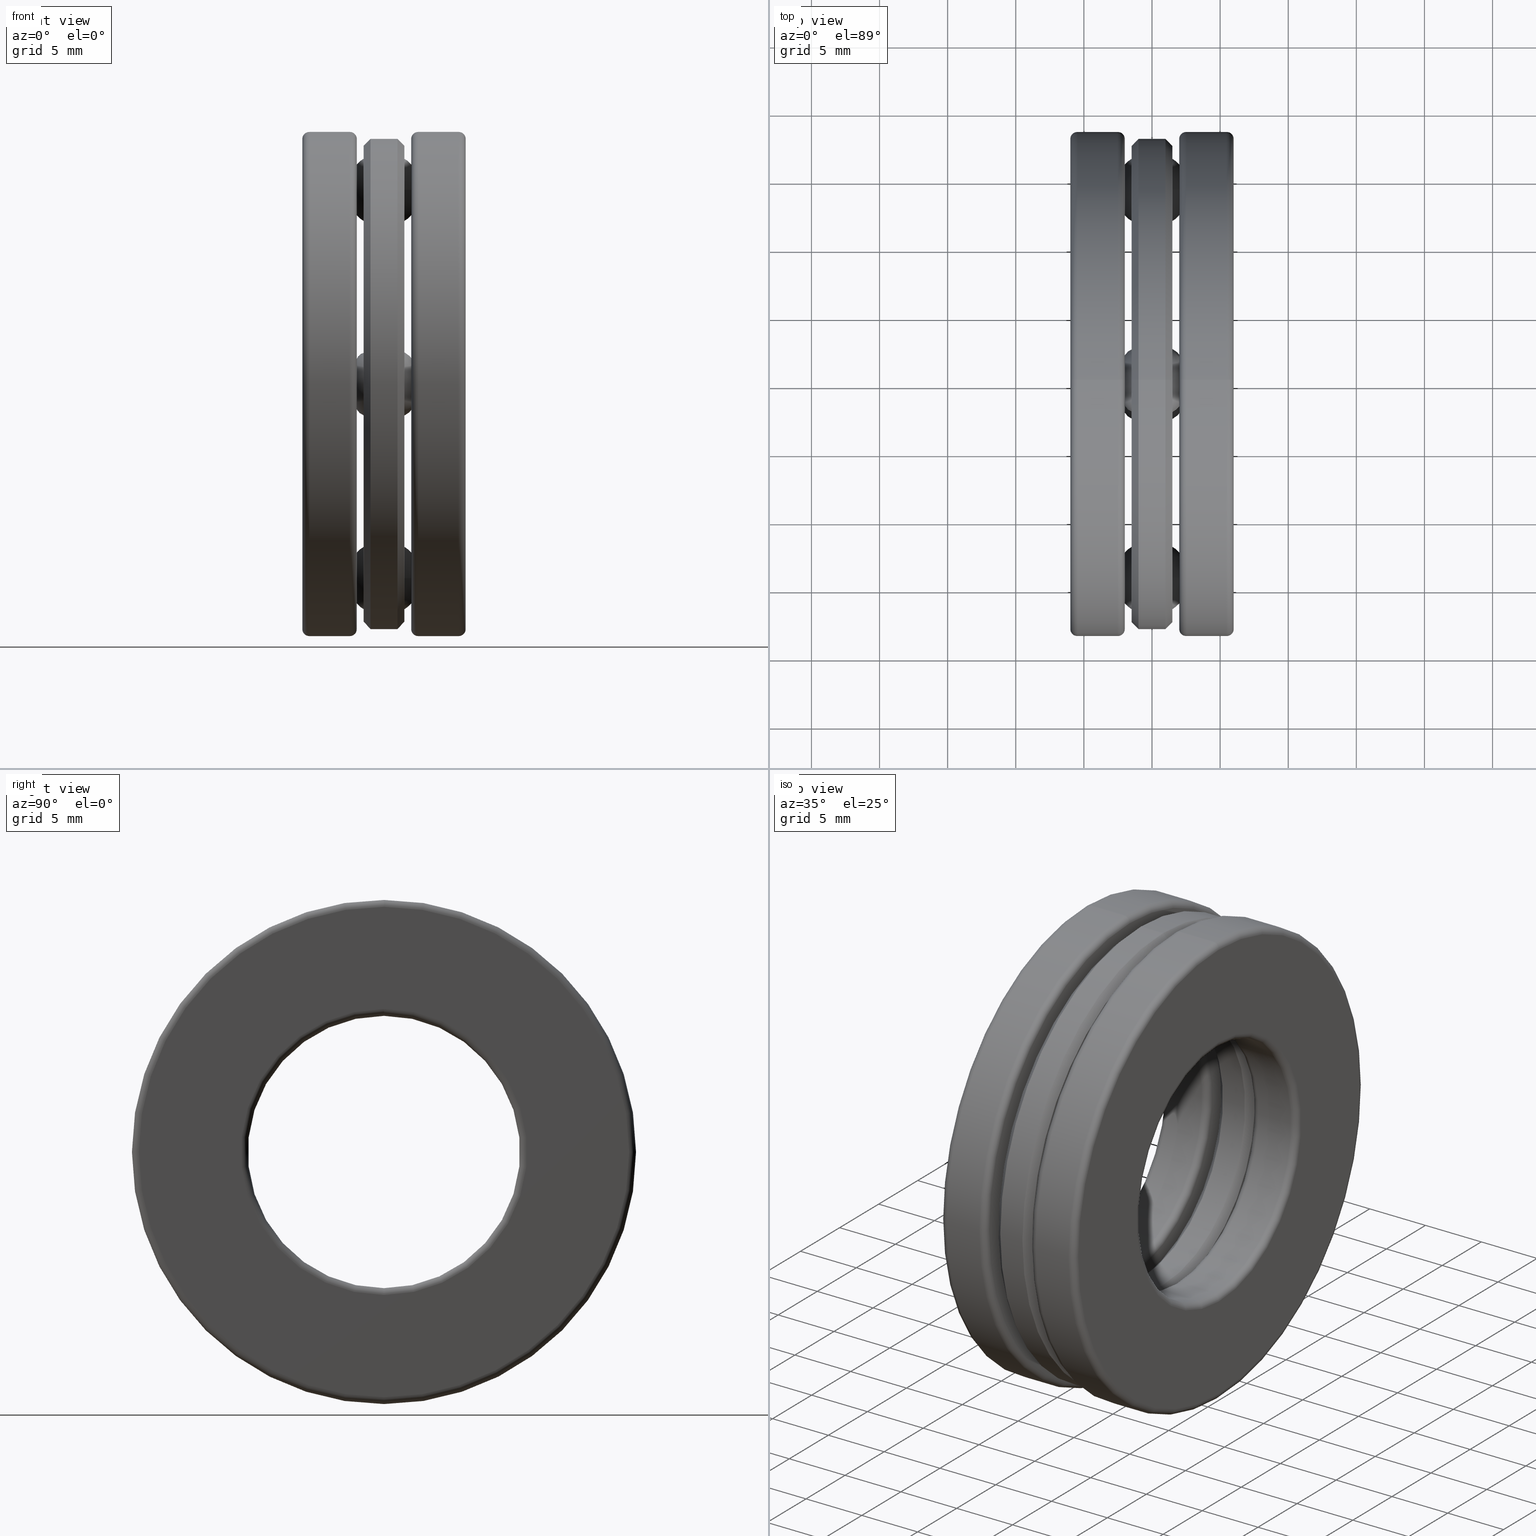
[diagram: canonical four-view strip — front | top / right | iso, engineering-drawing reading convention]
A machine part, canonical four-view strip (front | top / right | iso — engineering-drawing reading convention). The complete STEP part file that produces these views, byte-faithful:
ISO-10303-21;
HEADER;
FILE_DESCRIPTION (( 'STEP AP203' ),
    '1' );
FILE_NAME ('2904-ABB.step',
    '2017-03-07T16:42:54',
    ( '' ),
    ( '' ),
    'SwSTEP 2.0',
    'SolidWorks 2017',
    '' );
FILE_SCHEMA (( 'CONFIG_CONTROL_DESIGN' ));
ENDSEC;

DATA;
#1 = DIRECTION ( 'NONE',  ( -1.000000000000000000, -0.0000000000000000000, -0.0000000000000000000 ) ) ;
#2 = DIRECTION ( 'NONE',  ( 0.0000000000000000000, 0.0000000000000000000, 1.000000000000000000 ) ) ;
#3 = VERTEX_POINT ( 'NONE', #647 ) ;
#4 = FACE_OUTER_BOUND ( 'NONE', #116, .T. ) ;
#5 = CARTESIAN_POINT ( 'NONE',  ( -0.05900000000000000400, 0.5610000000000000500, 0.0000000000000000000 ) ) ;
#6 = FACE_OUTER_BOUND ( 'NONE', #537, .T. ) ;
#7 = APPROVAL_ROLE ( '' ) ;
#8 = ORIENTED_EDGE ( 'NONE', *, *, #449, .T. ) ;
#9 = DIRECTION ( 'NONE',  ( -1.000000000000000000, -0.0000000000000000000, -0.0000000000000000000 ) ) ;
#10 = EDGE_LOOP ( 'NONE', ( #759 ) ) ;
#11 = AXIS2_PLACEMENT_3D ( 'NONE', #288, #742, #348 ) ;
#12 = CARTESIAN_POINT ( 'NONE',  ( -0.05900000000000000400, 0.5610000000000000500, -0.1145000000000000000 ) ) ;
#13 = CARTESIAN_POINT ( 'NONE',  ( -0.05900000000000000400, 0.1145000000000058700, 0.5609999999999988300 ) ) ;
#14 = EDGE_CURVE ( 'NONE', #212, #212, #87, .T. ) ;
#15 = VERTEX_POINT ( 'NONE', #515 ) ;
#16 = PERSON_AND_ORGANIZATION ( #44, #329 ) ;
#17 = CONICAL_SURFACE ( 'NONE', #614, 0.4334999999999998900, 0.7853981633974468400 ) ;
#18 = CARTESIAN_POINT ( 'NONE',  ( 0.05899999999999999000, 0.0000000000000000000, 0.6884999999999998900 ) ) ;
#19 = ADVANCED_FACE ( 'NONE', ( ), #389, .T. ) ;
#20 = DIRECTION ( 'NONE',  ( 0.0000000000000000000, 0.0000000000000000000, 1.000000000000000000 ) ) ;
#21 = ORIENTED_EDGE ( 'NONE', *, *, #246, .T. ) ;
#22 = CARTESIAN_POINT ( 'NONE',  ( 0.09866824000000028200, 0.0000000000000000000, 0.7285000000000001500 ) ) ;
#23 = AXIS2_PLACEMENT_3D ( 'NONE', #427, #562, #761 ) ;
#24 = ADVANCED_FACE ( 'NONE', ( #693, #796 ), #94, .T. ) ;
#25 = DIRECTION ( 'NONE',  ( 1.000000000000000000, 0.0000000000000000000, 0.0000000000000000000 ) ) ;
#26 = FACE_BOUND ( 'NONE', #426, .T. ) ;
#27 = DIRECTION ( 'NONE',  ( -1.000000000000000000, -0.0000000000000000000, -0.0000000000000000000 ) ) ;
#28 = CIRCLE ( 'NONE', #622, 0.7285000000000000400 ) ;
#29 = AXIS2_PLACEMENT_3D ( 'NONE', #339, #83, #80 ) ;
#30 = EDGE_LOOP ( 'NONE', ( #536 ) ) ;
#31 = DIRECTION ( 'NONE',  ( 0.0000000000000000000, 0.0000000000000000000, 1.000000000000000000 ) ) ;
#32 = ORIENTED_EDGE ( 'NONE', *, *, #822, .F. ) ;
#33 = CARTESIAN_POINT ( 'NONE',  ( -0.2160000000000000000, 0.0000000000000000000, 0.0000000000000000000 ) ) ;
#34 = DIRECTION ( 'NONE',  ( 0.0000000000000000000, 0.0000000000000000000, 1.000000000000000000 ) ) ;
#35 = VERTEX_POINT ( 'NONE', #453 ) ;
#36 = COORDINATED_UNIVERSAL_TIME_OFFSET ( 5, 0, .BEHIND. ) ;
#37 = FACE_OUTER_BOUND ( 'NONE', #750, .T. ) ;
#38 = CARTESIAN_POINT ( 'NONE',  ( -0.03899999999999998600, 0.0000000000000000000, 0.0000000000000000000 ) ) ;
#39 = ORIENTED_EDGE ( 'NONE', *, *, #196, .F. ) ;
#40 = DIRECTION ( 'NONE',  ( -1.000000000000000000, -0.0000000000000000000, -0.0000000000000000000 ) ) ;
#41 = AXIS2_PLACEMENT_3D ( 'NONE', #409, #672, #794 ) ;
#42 = DIRECTION ( 'NONE',  ( 0.0000000000000000000, 0.0000000000000000000, 1.000000000000000000 ) ) ;
#43 = FACE_OUTER_BOUND ( 'NONE', #526, .T. ) ;
#44 = PERSON ( 'UNSPECIFIED', 'UNSPECIFIED', 'UNSPECIFIED', ('UNSPECIFIED'), ('UNSPECIFIED'), ('UNSPECIFIED') ) ;
#45 = CARTESIAN_POINT ( 'NONE',  ( -0.07866824000000002800, 0.0000000000000000000, 0.0000000000000000000 ) ) ;
#46 = CYLINDRICAL_SURFACE ( 'NONE', #698, 0.3934999999999999100 ) ;
#47 = CC_DESIGN_PERSON_AND_ORGANIZATION_ASSIGNMENT ( #700, #597, ( #749 ) ) ;
#48 = ORIENTED_EDGE ( 'NONE', *, *, #149, .F. ) ;
#49 = EDGE_LOOP ( 'NONE', ( #105 ) ) ;
#50 = DIRECTION ( 'NONE',  ( -1.000000000000000000, -0.0000000000000000000, -0.0000000000000000000 ) ) ;
#51 = CIRCLE ( 'NONE', #219, 0.7285000000000001500 ) ;
#52 = DATE_AND_TIME ( #592, #804 ) ;
#53 = CIRCLE ( 'NONE', #259, 0.6884999999999998900 ) ;
#54 =( LENGTH_UNIT ( ) NAMED_UNIT ( * ) SI_UNIT ( $, .METRE. ) );
#55 = EDGE_LOOP ( 'NONE', ( #571 ) ) ;
#56 = DIRECTION ( 'NONE',  ( 0.0000000000000000000, 0.0000000000000000000, 1.000000000000000000 ) ) ;
#57 = VERTEX_POINT ( 'NONE', #392 ) ;
#58 = CARTESIAN_POINT ( 'NONE',  ( 0.2360000000000001000, 0.0000000000000000000, 0.0000000000000000000 ) ) ;
#59 = FACE_BOUND ( 'NONE', #402, .T. ) ;
#60 = CIRCLE ( 'NONE', #416, 0.1145000000000000000 ) ;
#61 = CARTESIAN_POINT ( 'NONE',  ( 0.03900000000000000000, 0.0000000000000000000, 0.0000000000000000000 ) ) ;
#62 = DIRECTION ( 'NONE',  ( 0.0000000000000000000, 1.000000000000000000, -1.073652049911719200E-014 ) ) ;
#63 = EDGE_LOOP ( 'NONE', ( #335 ) ) ;
#64 = AXIS2_PLACEMENT_3D ( 'NONE', #791, #782, #274 ) ;
#65 = DIRECTION ( 'NONE',  ( 0.0000000000000000000, 0.0000000000000000000, 1.000000000000000000 ) ) ;
#66 = CARTESIAN_POINT ( 'NONE',  ( 0.05899999999999999700, 5.876163093272994000E-015, 0.5610000000000000500 ) ) ;
#67 = DESIGN_CONTEXT ( 'detailed design', #776, 'design' ) ;
#68 = ADVANCED_FACE ( 'NONE', ( #624, #740 ), #815, .T. ) ;
#69 = CARTESIAN_POINT ( 'NONE',  ( 0.05899999999999999700, 0.1145000000000058700, 0.5609999999999988300 ) ) ;
#70 = DIRECTION ( 'NONE',  ( 1.000000000000000000, 0.0000000000000000000, 0.0000000000000000000 ) ) ;
#71 = AXIS2_PLACEMENT_3D ( 'NONE', #139, #589, #586 ) ;
#72 = FACE_OUTER_BOUND ( 'NONE', #158, .T. ) ;
#73 = PERSON_AND_ORGANIZATION ( #44, #329 ) ;
#74 = MECHANICAL_CONTEXT ( 'NONE', #324, 'mechanical' ) ;
#75 = DIRECTION ( 'NONE',  ( -1.000000000000000000, -0.0000000000000000000, -0.0000000000000000000 ) ) ;
#76 = DIRECTION ( 'NONE',  ( -1.000000000000000000, -0.0000000000000000000, -0.0000000000000000000 ) ) ;
#77 = PLANE ( 'NONE',  #548 ) ;
#78 = CLOSED_SHELL ( 'NONE', ( #516, #320, #663, #452, #530, #440, #270, #712, #593, #725, #588, #326 ) ) ;
#79 = CARTESIAN_POINT ( 'NONE',  ( -0.05900000000000000400, -0.5610000000000000500, 0.1145000000000000000 ) ) ;
#80 = DIRECTION ( 'NONE',  ( 0.0000000000000000000, 0.0000000000000000000, 1.000000000000000000 ) ) ;
#81 = MANIFOLD_SOLID_BREP ( 'Revolve3', #322 ) ;
#82 = CARTESIAN_POINT ( 'NONE',  ( 0.2160000000000003300, 0.0000000000000000000, 0.7285000000000001500 ) ) ;
#83 = DIRECTION ( 'NONE',  ( 1.000000000000000000, 0.0000000000000000000, 0.0000000000000000000 ) ) ;
#84 = CYLINDRICAL_SURFACE ( 'NONE', #696, 0.1145000000000000000 ) ;
#85 = AXIS2_PLACEMENT_3D ( 'NONE', #165, #228, #544 ) ;
#86 = SPHERICAL_SURFACE ( 'NONE', #789, 0.1095000000000000100 ) ;
#87 = CIRCLE ( 'NONE', #404, 0.4135000000000000900 ) ;
#88 = EDGE_LOOP ( 'NONE', ( #391 ) ) ;
#89 = APPROVAL ( #733, 'UNSPECIFIED' ) ;
#90 = VERTEX_POINT ( 'NONE', #461 ) ;
#91 = FACE_BOUND ( 'NONE', #705, .T. ) ;
#92 = DIRECTION ( 'NONE',  ( -1.000000000000000000, -0.0000000000000000000, -0.0000000000000000000 ) ) ;
#93 = AXIS2_PLACEMENT_3D ( 'NONE', #383, #9, #512 ) ;
#94 = TOROIDAL_SURFACE ( 'NONE', #290, 0.7085000000000001300, 0.01999999999999994100 ) ;
#95 = ORIENTED_EDGE ( 'NONE', *, *, #272, .F. ) ;
#96 = CARTESIAN_POINT ( 'NONE',  ( 0.07866824000000027800, 0.0000000000000000000, 0.0000000000000000000 ) ) ;
#97 = ORIENTED_EDGE ( 'NONE', *, *, #822, .T. ) ;
#98 = DIRECTION ( 'NONE',  ( 1.000000000000000000, 0.0000000000000000000, 0.0000000000000000000 ) ) ;
#99 = LOCAL_TIME ( 11, 42, 54.00000000000000000, #142 ) ;
#100 = FACE_OUTER_BOUND ( 'NONE', #173, .T. ) ;
#101 = SPHERICAL_SURFACE ( 'NONE', #318, 0.1095000000000000100 ) ;
#102 = PRODUCT_DEFINITION ( 'UNKNOWN', '', #239, #67 ) ;
#103 = FACE_OUTER_BOUND ( 'NONE', #183, .T. ) ;
#104 = DIRECTION ( 'NONE',  ( -1.000000000000000000, -0.0000000000000000000, -0.0000000000000000000 ) ) ;
#105 = ORIENTED_EDGE ( 'NONE', *, *, #524, .F. ) ;
#106 = ORIENTED_EDGE ( 'NONE', *, *, #377, .T. ) ;
#107 = MANIFOLD_SOLID_BREP ( 'CirPattern4[1]', #123 ) ;
#108 = EDGE_LOOP ( 'NONE', ( #778 ) ) ;
#109 = AXIS2_PLACEMENT_3D ( 'NONE', #217, #336, #659 ) ;
#110 = DIRECTION ( 'NONE',  ( 1.000000000000000000, 0.0000000000000000000, 0.0000000000000000000 ) ) ;
#111 = VERTEX_POINT ( 'NONE', #22 ) ;
#112 = TOROIDAL_SURFACE ( 'NONE', #531, 0.4134999999999999800, 0.01999999999999992400 ) ;
#113 = DIRECTION ( 'NONE',  ( 1.000000000000000000, 0.0000000000000000000, 0.0000000000000000000 ) ) ;
#114 = ORIENTED_EDGE ( 'NONE', *, *, #471, .T. ) ;
#115 = CARTESIAN_POINT ( 'NONE',  ( 0.2360000000000000200, 1.092739197465706300E-016, 0.0000000000000000000 ) ) ;
#116 = EDGE_LOOP ( 'NONE', ( #106 ) ) ;
#117 = CARTESIAN_POINT ( 'NONE',  ( 0.09866824000000035100, 0.0000000000000000000, 0.3935000000000001300 ) ) ;
#118 = APPROVAL_PERSON_ORGANIZATION ( #286, #487, #7 ) ;
#119 = FACE_BOUND ( 'NONE', #436, .T. ) ;
#120 = DIRECTION ( 'NONE',  ( 0.0000000000000000000, 0.0000000000000000000, 1.000000000000000000 ) ) ;
#121 = AXIS2_PLACEMENT_3D ( 'NONE', #45, #549, #685 ) ;
#122 = DIRECTION ( 'NONE',  ( 0.0000000000000000000, 0.0000000000000000000, -1.000000000000000000 ) ) ;
#123 = CLOSED_SHELL ( 'NONE', ( #128 ) ) ;
#124 = PLANE ( 'NONE',  #465 ) ;
#125 = DIRECTION ( 'NONE',  ( 0.0000000000000000000, -1.000000000000000000, 3.491481338843133700E-015 ) ) ;
#126 = CC_DESIGN_APPROVAL ( #89, ( #749 ) ) ;
#127 = CARTESIAN_POINT ( 'NONE',  ( 0.09866824000000035100, 0.0000000000000000000, 0.0000000000000000000 ) ) ;
#128 = ADVANCED_FACE ( 'NONE', ( ), #164, .T. ) ;
#129 = CYLINDRICAL_SURFACE ( 'NONE', #41, 0.7285000000000001500 ) ;
#130 = CIRCLE ( 'NONE', #600, 0.1145000000000000000 ) ;
#131 = CARTESIAN_POINT ( 'NONE',  ( 0.07866824000000032000, 0.0000000000000000000, 0.4848320407566125700 ) ) ;
#132 = DIRECTION ( 'NONE',  ( 0.0000000000000000000, 0.0000000000000000000, -1.000000000000000000 ) ) ;
#133 = ORIENTED_EDGE ( 'NONE', *, *, #358, .T. ) ;
#134 = ADVANCED_FACE ( 'NONE', ( #557, #333 ), #719, .T. ) ;
#135 = AXIS2_PLACEMENT_3D ( 'NONE', #718, #258, #645 ) ;
#136 = EDGE_LOOP ( 'NONE', ( #558 ) ) ;
#137 = DATE_TIME_ROLE ( 'creation_date' ) ;
#138 = CARTESIAN_POINT ( 'NONE',  ( -0.05900000000000000400, 0.0000000000000000000, 0.0000000000000000000 ) ) ;
#139 = CARTESIAN_POINT ( 'NONE',  ( 0.0000000000000000000, 0.0000000000000000000, 0.0000000000000000000 ) ) ;
#140 = VERTEX_POINT ( 'NONE', #785 ) ;
#141 = VERTEX_POINT ( 'NONE', #207 ) ;
#142 = COORDINATED_UNIVERSAL_TIME_OFFSET ( 5, 0, .BEHIND. ) ;
#143 = CIRCLE ( 'NONE', #29, 0.1145000000000000000 ) ;
#144 = ORIENTED_EDGE ( 'NONE', *, *, #155, .T. ) ;
#145 = APPLICATION_PROTOCOL_DEFINITION ( 'international standard', 'config_control_design', 1994, #324 ) ;
#146 = CC_DESIGN_APPROVAL ( #487, ( #239 ) ) ;
#147 = EDGE_LOOP ( 'NONE', ( #798 ) ) ;
#148 = CARTESIAN_POINT ( 'NONE',  ( 0.2160000000000003300, 0.0000000000000000000, 0.0000000000000000000 ) ) ;
#149 = EDGE_CURVE ( 'NONE', #480, #480, #375, .T. ) ;
#150 = ADVANCED_FACE ( 'NONE', ( #203, #547 ), #77, .F. ) ;
#151 = CARTESIAN_POINT ( 'NONE',  ( 0.03900000000000000000, 0.0000000000000000000, 0.0000000000000000000 ) ) ;
#152 = CARTESIAN_POINT ( 'NONE',  ( -6.829619984160658000E-017, 5.876163093272994000E-015, 0.5610000000000000500 ) ) ;
#153 = VERTEX_POINT ( 'NONE', #257 ) ;
#154 = AXIS2_PLACEMENT_3D ( 'NONE', #599, #342, #665 ) ;
#155 = EDGE_CURVE ( 'NONE', #57, #57, #60, .T. ) ;
#156 = FACE_OUTER_BOUND ( 'NONE', #551, .T. ) ;
#157 = DIRECTION ( 'NONE',  ( -1.000000000000000000, -0.0000000000000000000, -0.0000000000000000000 ) ) ;
#158 = EDGE_LOOP ( 'NONE', ( #770 ) ) ;
#159 = ORIENTED_EDGE ( 'NONE', *, *, #163, .T. ) ;
#160 = DIRECTION ( 'NONE',  ( 0.0000000000000000000, 0.0000000000000000000, 1.000000000000000000 ) ) ;
#161 = DIRECTION ( 'NONE',  ( -1.000000000000000000, -0.0000000000000000000, -0.0000000000000000000 ) ) ;
#162 = CIRCLE ( 'NONE', #810, 0.7285000000000001500 ) ;
#163 = EDGE_CURVE ( 'NONE', #775, #775, #28, .T. ) ;
#164 = SPHERICAL_SURFACE ( 'NONE', #754, 0.1095000000000000100 ) ;
#165 = CARTESIAN_POINT ( 'NONE',  ( 0.05899999999999999700, 3.950466461426264900E-018, 0.0000000000000000000 ) ) ;
#166 = EDGE_LOOP ( 'NONE', ( #32 ) ) ;
#167 = ORIENTED_EDGE ( 'NONE', *, *, #358, .F. ) ;
#168 = AXIS2_PLACEMENT_3D ( 'NONE', #314, #771, #132 ) ;
#169 = DIRECTION ( 'NONE',  ( 1.000000000000000000, 0.0000000000000000000, 0.0000000000000000000 ) ) ;
#170 = VERTEX_POINT ( 'NONE', #253 ) ;
#171 = FACE_OUTER_BOUND ( 'NONE', #542, .T. ) ;
#172 = PRODUCT_RELATED_PRODUCT_CATEGORY ( 'detail', '', ( #803 ) ) ;
#173 = EDGE_LOOP ( 'NONE', ( #695 ) ) ;
#174 = DIRECTION ( 'NONE',  ( -1.000000000000000000, -0.0000000000000000000, -0.0000000000000000000 ) ) ;
#175 = EDGE_LOOP ( 'NONE', ( #282 ) ) ;
#176 = AXIS2_PLACEMENT_3D ( 'NONE', #393, #726, #529 ) ;
#177 = CARTESIAN_POINT ( 'NONE',  ( 0.05900000000000000400, 0.0000000000000000000, 0.0000000000000000000 ) ) ;
#178 = CIRCLE ( 'NONE', #421, 0.1145000000000000000 ) ;
#179 = DIRECTION ( 'NONE',  ( -1.000000000000000000, -0.0000000000000000000, -0.0000000000000000000 ) ) ;
#180 = CIRCLE ( 'NONE', #176, 0.7285000000000000400 ) ;
#181 = MANIFOLD_SOLID_BREP ( 'CirPattern7', #78 ) ;
#182 = DIRECTION ( 'NONE',  ( 0.0000000000000000000, 0.0000000000000000000, -1.000000000000000000 ) ) ;
#183 = EDGE_LOOP ( 'NONE', ( #792 ) ) ;
#184 = CC_DESIGN_PERSON_AND_ORGANIZATION_ASSIGNMENT ( #714, #444, ( #239 ) ) ;
#185 = DIRECTION ( 'NONE',  ( -1.000000000000000000, -0.0000000000000000000, -0.0000000000000000000 ) ) ;
#186 = DIRECTION ( 'NONE',  ( 1.000000000000000000, 0.0000000000000000000, 0.0000000000000000000 ) ) ;
#187 = VERTEX_POINT ( 'NONE', #330 ) ;
#188 = CYLINDRICAL_SURFACE ( 'NONE', #64, 0.1145000000000000000 ) ;
#189 = ADVANCED_FACE ( 'NONE', ( #535, #222 ), #192, .F. ) ;
#190 = PERSON_AND_ORGANIZATION_ROLE ( 'design_owner' ) ;
#191 = ORIENTED_EDGE ( 'NONE', *, *, #411, .F. ) ;
#192 = PLANE ( 'NONE',  #168 ) ;
#193 = EDGE_LOOP ( 'NONE', ( #241 ) ) ;
#194 = CARTESIAN_POINT ( 'NONE',  ( -0.09866824000000007400, 0.0000000000000000000, 0.7285000000000000400 ) ) ;
#195 = ADVANCED_FACE ( 'NONE', ( #6, #445 ), #386, .T. ) ;
#196 = EDGE_CURVE ( 'NONE', #15, #15, #579, .T. ) ;
#197 = DIRECTION ( 'NONE',  ( 0.0000000000000000000, 0.0000000000000000000, 1.000000000000000000 ) ) ;
#198 = PERSON_AND_ORGANIZATION_ROLE ( 'creator' ) ;
#199 = VERTEX_POINT ( 'NONE', #774 ) ;
#200 = DIRECTION ( 'NONE',  ( 0.0000000000000000000, 0.0000000000000000000, 1.000000000000000000 ) ) ;
#201 = CIRCLE ( 'NONE', #209, 0.7085000000000000200 ) ;
#202 = TOROIDAL_SURFACE ( 'NONE', #527, 0.7085000000000002400, 0.01999999999999976800 ) ;
#203 = FACE_BOUND ( 'NONE', #49, .T. ) ;
#204 = CARTESIAN_POINT ( 'NONE',  ( 0.2360000000000001000, 0.0000000000000000000, 0.4135000000000000900 ) ) ;
#205 = CARTESIAN_POINT ( 'NONE',  ( 0.0000000000000000000, 0.0000000000000000000, 0.0000000000000000000 ) ) ;
#206 = EDGE_LOOP ( 'NONE', ( #350 ) ) ;
#207 = CARTESIAN_POINT ( 'NONE',  ( -0.2159999999999999700, 0.0000000000000000000, 0.3934999999999999100 ) ) ;
#208 = DIRECTION ( 'NONE',  ( -1.000000000000000000, -0.0000000000000000000, -0.0000000000000000000 ) ) ;
#209 = AXIS2_PLACEMENT_3D ( 'NONE', #61, #365, #2 ) ;
#210 = EDGE_CURVE ( 'NONE', #35, #35, #595, .T. ) ;
#211 = ADVANCED_FACE ( 'NONE', ( #567, #373 ), #460, .F. ) ;
#212 = VERTEX_POINT ( 'NONE', #204 ) ;
#213 = APPROVAL_ROLE ( '' ) ;
#214 = FACE_OUTER_BOUND ( 'NONE', #814, .T. ) ;
#215 = DATE_TIME_ROLE ( 'classification_date' ) ;
#216 = ORIENTED_EDGE ( 'NONE', *, *, #609, .F. ) ;
#217 = CARTESIAN_POINT ( 'NONE',  ( -6.829619984160658000E-017, 0.0000000000000000000, 0.0000000000000000000 ) ) ;
#218 = ORIENTED_EDGE ( 'NONE', *, *, #716, .F. ) ;
#219 = AXIS2_PLACEMENT_3D ( 'NONE', #640, #185, #56 ) ;
#220 = AXIS2_PLACEMENT_3D ( 'NONE', #96, #104, #281 ) ;
#221 = FACE_BOUND ( 'NONE', #206, .T. ) ;
#222 = FACE_OUTER_BOUND ( 'NONE', #234, .T. ) ;
#223 = CARTESIAN_POINT ( 'NONE',  ( 0.2359999999999999600, 0.0000000000000000000, 0.0000000000000000000 ) ) ;
#224 = EDGE_LOOP ( 'NONE', ( #114 ) ) ;
#225 = AXIS2_PLACEMENT_3D ( 'NONE', #559, #50, #301 ) ;
#226 = CARTESIAN_POINT ( 'NONE',  ( 0.05899999999999999000, 0.0000000000000000000, 0.0000000000000000000 ) ) ;
#227 = MANIFOLD_SOLID_BREP ( 'CirPattern4[3]', #569 ) ;
#228 = DIRECTION ( 'NONE',  ( 1.000000000000000000, 0.0000000000000000000, 0.0000000000000000000 ) ) ;
#229 = CIRCLE ( 'NONE', #341, 0.4134999999999999800 ) ;
#230 = CARTESIAN_POINT ( 'NONE',  ( -6.829619984160658000E-017, 0.0000000000000000000, 0.0000000000000000000 ) ) ;
#231 = FACE_OUTER_BOUND ( 'NONE', #720, .T. ) ;
#232 = DIRECTION ( 'NONE',  ( -1.000000000000000000, -0.0000000000000000000, -0.0000000000000000000 ) ) ;
#233 = ORIENTED_EDGE ( 'NONE', *, *, #366, .T. ) ;
#234 = EDGE_LOOP ( 'NONE', ( #684 ) ) ;
#235 = AXIS2_PLACEMENT_3D ( 'NONE', #486, #745, #808 ) ;
#236 = DIRECTION ( 'NONE',  ( 1.000000000000000000, -0.0000000000000000000, -0.0000000000000000000 ) ) ;
#237 = EDGE_CURVE ( 'NONE', #256, #256, #489, .T. ) ;
#238 = DATE_AND_TIME ( #762, #555 ) ;
#239 = PRODUCT_DEFINITION_FORMATION_WITH_SPECIFIED_SOURCE ( 'ANY', '', #803, .NOT_KNOWN. ) ;
#240 = DIRECTION ( 'NONE',  ( -1.000000000000000000, -0.0000000000000000000, -0.0000000000000000000 ) ) ;
#241 = ORIENTED_EDGE ( 'NONE', *, *, #560, .F. ) ;
#242 = DIRECTION ( 'NONE',  ( 0.0000000000000000000, 1.000000000000000000, -1.073652049911719200E-014 ) ) ;
#243 = EDGE_CURVE ( 'NONE', #424, #424, #756, .T. ) ;
#244 = DIRECTION ( 'NONE',  ( -1.000000000000000000, -0.0000000000000000000, -0.0000000000000000000 ) ) ;
#245 = FACE_OUTER_BOUND ( 'NONE', #734, .T. ) ;
#246 = EDGE_CURVE ( 'NONE', #498, #498, #130, .T. ) ;
#247 = FACE_OUTER_BOUND ( 'NONE', #55, .T. ) ;
#248 = CARTESIAN_POINT ( 'NONE',  ( -0.09866823999999990700, 0.0000000000000000000, 0.0000000000000000000 ) ) ;
#249 = ORIENTED_EDGE ( 'NONE', *, *, #279, .F. ) ;
#250 = EDGE_LOOP ( 'NONE', ( #191 ) ) ;
#251 = DIRECTION ( 'NONE',  ( 0.0000000000000000000, 0.0000000000000000000, -1.000000000000000000 ) ) ;
#252 = AXIS2_PLACEMENT_3D ( 'NONE', #566, #637, #120 ) ;
#253 = CARTESIAN_POINT ( 'NONE',  ( 0.07866824000000027800, 0.0000000000000000000, 0.7085000000000002400 ) ) ;
#254 = ADVANCED_FACE ( 'NONE', ( #788, #806 ), #634, .T. ) ;
#255 = VERTEX_POINT ( 'NONE', #522 ) ;
#256 = VERTEX_POINT ( 'NONE', #69 ) ;
#257 = CARTESIAN_POINT ( 'NONE',  ( -0.03899999999999998600, 0.0000000000000000000, 0.4134999999999999800 ) ) ;
#258 = DIRECTION ( 'NONE',  ( -1.000000000000000000, -0.0000000000000000000, -0.0000000000000000000 ) ) ;
#259 = AXIS2_PLACEMENT_3D ( 'NONE', #226, #479, #405 ) ;
#260 = APPROVAL_STATUS ( 'not_yet_approved' ) ;
#261 = EDGE_LOOP ( 'NONE', ( #772 ) ) ;
#262 = ORIENTED_EDGE ( 'NONE', *, *, #658, .F. ) ;
#263 = CARTESIAN_POINT ( 'NONE',  ( -0.05899999999999998300, 0.0000000000000000000, 0.4334999999999998900 ) ) ;
#264 = AXIS2_PLACEMENT_3D ( 'NONE', #33, #92, #160 ) ;
#265 = ADVANCED_FACE ( 'NONE', ( #269, #103 ), #766, .F. ) ;
#266 = CARTESIAN_POINT ( 'NONE',  ( 0.05899999999999999700, -0.5610000000000000500, 0.1145000000000000000 ) ) ;
#267 = LOCAL_TIME ( 11, 42, 54.00000000000000000, #590 ) ;
#268 = CIRCLE ( 'NONE', #276, 0.4334999999999998900 ) ;
#269 = FACE_OUTER_BOUND ( 'NONE', #707, .T. ) ;
#270 = ADVANCED_FACE ( 'NONE', ( #500, #413 ), #331, .F. ) ;
#271 = ORIENTED_EDGE ( 'NONE', *, *, #366, .F. ) ;
#272 = EDGE_CURVE ( 'NONE', #141, #141, #633, .T. ) ;
#273 = ORIENTED_EDGE ( 'NONE', *, *, #149, .T. ) ;
#274 = DIRECTION ( 'NONE',  ( 0.0000000000000000000, -1.000000000000000000, 3.578840166372397400E-015 ) ) ;
#275 = DIRECTION ( 'NONE',  ( -1.000000000000000000, -0.0000000000000000000, -0.0000000000000000000 ) ) ;
#276 = AXIS2_PLACEMENT_3D ( 'NONE', #739, #616, #608 ) ;
#277 = EDGE_CURVE ( 'NONE', #604, #604, #162, .T. ) ;
#278 = FACE_BOUND ( 'NONE', #343, .T. ) ;
#279 = EDGE_CURVE ( 'NONE', #755, #755, #143, .T. ) ;
#280 = ORIENTED_EDGE ( 'NONE', *, *, #243, .F. ) ;
#281 = DIRECTION ( 'NONE',  ( 0.0000000000000000000, 0.0000000000000000000, 1.000000000000000000 ) ) ;
#282 = ORIENTED_EDGE ( 'NONE', *, *, #716, .T. ) ;
#283 = CARTESIAN_POINT ( 'NONE',  ( -0.09866824000000006000, 0.0000000000000000000, 0.0000000000000000000 ) ) ;
#284 = CARTESIAN_POINT ( 'NONE',  ( 0.2160000000000003300, 0.0000000000000000000, 0.0000000000000000000 ) ) ;
#285 = VERTEX_POINT ( 'NONE', #724 ) ;
#286 = PERSON_AND_ORGANIZATION ( #44, #329 ) ;
#287 = TOROIDAL_SURFACE ( 'NONE', #264, 0.4134999999999999800, 0.02000000000000004200 ) ;
#288 = CARTESIAN_POINT ( 'NONE',  ( -0.07866824000000008400, 0.0000000000000000000, 0.0000000000000000000 ) ) ;
#289 = EDGE_LOOP ( 'NONE', ( #661 ) ) ;
#290 = AXIS2_PLACEMENT_3D ( 'NONE', #638, #1, #311 ) ;
#291 = CARTESIAN_POINT ( 'NONE',  ( 0.07866824000000032000, 0.0000000000000000000, 0.0000000000000000000 ) ) ;
#292 = ORIENTED_EDGE ( 'NONE', *, *, #163, .F. ) ;
#293 = PLANE ( 'NONE',  #394 ) ;
#294 = CC_DESIGN_PERSON_AND_ORGANIZATION_ASSIGNMENT ( #73, #319, ( #102 ) ) ;
#295 = CARTESIAN_POINT ( 'NONE',  ( 0.0000000000000000000, 0.0000000000000000000, 0.0000000000000000000 ) ) ;
#296 = FACE_OUTER_BOUND ( 'NONE', #514, .T. ) ;
#297 = DIRECTION ( 'NONE',  ( 0.0000000000000000000, 0.0000000000000000000, 1.000000000000000000 ) ) ;
#298 = ORIENTED_EDGE ( 'NONE', *, *, #651, .F. ) ;
#299 = CLOSED_SHELL ( 'NONE', ( #573, #581, #381, #254, #24, #150, #447, #523, #706, #653 ) ) ;
#300 = AXIS2_PLACEMENT_3D ( 'NONE', #470, #157, #468 ) ;
#301 = DIRECTION ( 'NONE',  ( 0.0000000000000000000, 0.0000000000000000000, 1.000000000000000000 ) ) ;
#302 = DIRECTION ( 'NONE',  ( 0.0000000000000000000, -1.000000000000000000, 3.578840166372397400E-015 ) ) ;
#303 = VERTEX_POINT ( 'NONE', #334 ) ;
#304 = CARTESIAN_POINT ( 'NONE',  ( -6.829619984160658000E-017, 0.5610000000000000500, 0.0000000000000000000 ) ) ;
#305 = FACE_OUTER_BOUND ( 'NONE', #596, .T. ) ;
#306 = APPROVAL_PERSON_ORGANIZATION ( #763, #89, #213 ) ;
#307 = AXIS2_PLACEMENT_3D ( 'NONE', #291, #748, #490 ) ;
#308 = FACE_BOUND ( 'NONE', #224, .T. ) ;
#309 = CARTESIAN_POINT ( 'NONE',  ( 0.05900000000000000400, 0.0000000000000000000, 0.0000000000000000000 ) ) ;
#310 = ORIENTED_EDGE ( 'NONE', *, *, #449, .F. ) ;
#311 = DIRECTION ( 'NONE',  ( 0.0000000000000000000, 0.0000000000000000000, 1.000000000000000000 ) ) ;
#312 = CARTESIAN_POINT ( 'NONE',  ( -0.05899999999999999000, -5.925699692139387300E-018, 0.0000000000000000000 ) ) ;
#313 = EDGE_CURVE ( 'NONE', #406, #406, #180, .T. ) ;
#314 = CARTESIAN_POINT ( 'NONE',  ( 0.07866824000000029200, 2.276585525520125600E-017, 0.0000000000000000000 ) ) ;
#315 = DIRECTION ( 'NONE',  ( 1.000000000000000000, 0.0000000000000000000, 0.0000000000000000000 ) ) ;
#316 = DIRECTION ( 'NONE',  ( 0.0000000000000000000, 0.0000000000000000000, -1.000000000000000000 ) ) ;
#317 = CIRCLE ( 'NONE', #442, 0.4848320407566120100 ) ;
#318 = AXIS2_PLACEMENT_3D ( 'NONE', #610, #477, #98 ) ;
#319 = PERSON_AND_ORGANIZATION_ROLE ( 'creator' ) ;
#320 = ADVANCED_FACE ( 'NONE', ( #308, #534 ), #541, .T. ) ;
#321 = DIRECTION ( 'NONE',  ( 1.000000000000000000, 0.0000000000000000000, 0.0000000000000000000 ) ) ;
#322 = CLOSED_SHELL ( 'NONE', ( #265, #189, #729, #211, #134, #68, #510, #396, #195, #518 ) ) ;
#323 = ORIENTED_EDGE ( 'NONE', *, *, #658, .T. ) ;
#324 = APPLICATION_CONTEXT ( 'configuration controlled 3d designs of mechanical parts and assemblies' ) ;
#325 = DIRECTION ( 'NONE',  ( -1.000000000000000000, -0.0000000000000000000, -0.0000000000000000000 ) ) ;
#326 = ADVANCED_FACE ( 'NONE', ( #546, #433 ), #188, .F. ) ;
#327 = CARTESIAN_POINT ( 'NONE',  ( 0.05899999999999999700, 0.5610000000000000500, -0.1145000000000000000 ) ) ;
#328 = CARTESIAN_POINT ( 'NONE',  ( -0.2160000000000001400, 0.0000000000000000000, 0.0000000000000000000 ) ) ;
#329 = ORGANIZATION ( 'UNSPECIFIED', 'UNSPECIFIED', '' ) ;
#330 = CARTESIAN_POINT ( 'NONE',  ( -0.07866824000000002800, 0.0000000000000000000, 0.6371679592433880900 ) ) ;
#331 = CONICAL_SURFACE ( 'NONE', #639, 0.4334999999999998900, 0.7853981633974466100 ) ;
#332 = DIRECTION ( 'NONE',  ( 0.0000000000000000000, 0.0000000000000000000, 1.000000000000000000 ) ) ;
#333 = FACE_OUTER_BOUND ( 'NONE', #598, .T. ) ;
#334 = CARTESIAN_POINT ( 'NONE',  ( -0.07866824000000008400, 0.0000000000000000000, 0.7085000000000001300 ) ) ;
#335 = ORIENTED_EDGE ( 'NONE', *, *, #237, .F. ) ;
#336 = DIRECTION ( 'NONE',  ( -1.000000000000000000, -0.0000000000000000000, -0.0000000000000000000 ) ) ;
#337 = EDGE_LOOP ( 'NONE', ( #376 ) ) ;
#338 = ADVANCED_FACE ( 'NONE', ( ), #86, .T. ) ;
#339 = CARTESIAN_POINT ( 'NONE',  ( 0.05899999999999999700, -0.5610000000000000500, 0.0000000000000000000 ) ) ;
#340 = CIRCLE ( 'NONE', #225, 0.4134999999999999800 ) ;
#341 = AXIS2_PLACEMENT_3D ( 'NONE', #699, #704, #438 ) ;
#342 = DIRECTION ( 'NONE',  ( -1.000000000000000000, -0.0000000000000000000, -0.0000000000000000000 ) ) ;
#343 = EDGE_LOOP ( 'NONE', ( #617 ) ) ;
#344 = ORIENTED_EDGE ( 'NONE', *, *, #353, .F. ) ;
#345 = AXIS2_PLACEMENT_3D ( 'NONE', #682, #417, #619 ) ;
#346 = VERTEX_POINT ( 'NONE', #18 ) ;
#347 = FACE_OUTER_BOUND ( 'NONE', #108, .T. ) ;
#348 = DIRECTION ( 'NONE',  ( 0.0000000000000000000, 0.0000000000000000000, 1.000000000000000000 ) ) ;
#349 = CIRCLE ( 'NONE', #660, 0.7085000000000000200 ) ;
#350 = ORIENTED_EDGE ( 'NONE', *, *, #459, .F. ) ;
#351 = DIRECTION ( 'NONE',  ( -1.000000000000000000, -0.0000000000000000000, -0.0000000000000000000 ) ) ;
#352 = CARTESIAN_POINT ( 'NONE',  ( -0.07866823999999994500, -4.097853945936188200E-017, 0.0000000000000000000 ) ) ;
#353 = EDGE_CURVE ( 'NONE', #802, #802, #472, .T. ) ;
#354 = CONICAL_SURFACE ( 'NONE', #387, 0.6884999999999998900, 0.7853981633974498300 ) ;
#355 = ORIENTED_EDGE ( 'NONE', *, *, #495, .T. ) ;
#356 = AXIS2_PLACEMENT_3D ( 'NONE', #709, #75, #587 ) ;
#357 = DIRECTION ( 'NONE',  ( 1.000000000000000000, 0.0000000000000000000, 0.0000000000000000000 ) ) ;
#358 = EDGE_CURVE ( 'NONE', #577, #577, #805, .T. ) ;
#359 = ORIENTED_EDGE ( 'NONE', *, *, #495, .F. ) ;
#360 = EDGE_CURVE ( 'NONE', #285, #285, #819, .T. ) ;
#361 = CARTESIAN_POINT ( 'NONE',  ( -0.2360393700787402600, -0.5610000000000000500, 0.0000000000000000000 ) ) ;
#362 = CYLINDRICAL_SURFACE ( 'NONE', #494, 0.1145000000000000000 ) ;
#363 = CIRCLE ( 'NONE', #563, 0.4134999999999999800 ) ;
#364 = ORIENTED_EDGE ( 'NONE', *, *, #697, .F. ) ;
#365 = DIRECTION ( 'NONE',  ( -1.000000000000000000, -0.0000000000000000000, -0.0000000000000000000 ) ) ;
#366 = EDGE_CURVE ( 'NONE', #153, #153, #363, .T. ) ;
#367 = MANIFOLD_SOLID_BREP ( 'CirPattern4[2]', #378 ) ;
#368 = DIRECTION ( 'NONE',  ( 1.000000000000000000, 0.0000000000000000000, 0.0000000000000000000 ) ) ;
#369 = CYLINDRICAL_SURFACE ( 'NONE', #473, 0.1145000000000000000 ) ;
#370 = AXIS2_PLACEMENT_3D ( 'NONE', #701, #576, #200 ) ;
#371 = FACE_OUTER_BOUND ( 'NONE', #476, .T. ) ;
#372 = DIRECTION ( 'NONE',  ( 0.0000000000000000000, 0.0000000000000000000, 1.000000000000000000 ) ) ;
#373 = FACE_OUTER_BOUND ( 'NONE', #10, .T. ) ;
#374 = DIRECTION ( 'NONE',  ( 0.0000000000000000000, 0.0000000000000000000, 1.000000000000000000 ) ) ;
#375 = CIRCLE ( 'NONE', #93, 0.3935000000000001300 ) ;
#376 = ORIENTED_EDGE ( 'NONE', *, *, #786, .T. ) ;
#377 = EDGE_CURVE ( 'NONE', #519, #519, #317, .T. ) ;
#378 = CLOSED_SHELL ( 'NONE', ( #466 ) ) ;
#379 = APPROVAL_STATUS ( 'not_yet_approved' ) ;
#380 = CARTESIAN_POINT ( 'NONE',  ( 0.07866824000000036100, 0.0000000000000000000, 0.4134999999999999800 ) ) ;
#381 = ADVANCED_FACE ( 'NONE', ( #247, #156 ), #656, .T. ) ;
#382 = VERTEX_POINT ( 'NONE', #131 ) ;
#383 = CARTESIAN_POINT ( 'NONE',  ( 0.09866824000000035100, 0.0000000000000000000, 0.0000000000000000000 ) ) ;
#384 = FACE_OUTER_BOUND ( 'NONE', #88, .T. ) ;
#385 = DATE_AND_TIME ( #784, #267 ) ;
#386 = TOROIDAL_SURFACE ( 'NONE', #356, 0.7085000000000002400, 0.01999999999999997600 ) ;
#387 = AXIS2_PLACEMENT_3D ( 'NONE', #736, #540, #688 ) ;
#388 = SECURITY_CLASSIFICATION_LEVEL ( 'unclassified' ) ;
#389 = SPHERICAL_SURFACE ( 'NONE', #623, 0.1095000000000000100 ) ;
#390 = CARTESIAN_POINT ( 'NONE',  ( 0.0000000000000000000, 0.0000000000000000000, 0.0000000000000000000 ) ) ;
#391 = ORIENTED_EDGE ( 'NONE', *, *, #644, .T. ) ;
#392 = CARTESIAN_POINT ( 'NONE',  ( 0.05899999999999999700, -0.1145000000000019600, -0.5609999999999997200 ) ) ;
#393 = CARTESIAN_POINT ( 'NONE',  ( -0.09866824000000007400, 0.0000000000000000000, 0.0000000000000000000 ) ) ;
#394 = AXIS2_PLACEMENT_3D ( 'NONE', #618, #113, #753 ) ;
#395 = CARTESIAN_POINT ( 'NONE',  ( -0.09866823999999992100, 0.0000000000000000000, 0.0000000000000000000 ) ) ;
#396 = ADVANCED_FACE ( 'NONE', ( #37, #371 ), #129, .T. ) ;
#397 = CARTESIAN_POINT ( 'NONE',  ( -0.05900000000000000400, 5.876163093272994000E-015, 0.5610000000000000500 ) ) ;
#398 = FACE_OUTER_BOUND ( 'NONE', #671, .T. ) ;
#399 = FACE_BOUND ( 'NONE', #686, .T. ) ;
#400 = CC_DESIGN_PERSON_AND_ORGANIZATION_ASSIGNMENT ( #16, #190, ( #803 ) ) ;
#401 = DIRECTION ( 'NONE',  ( 0.0000000000000000000, 1.000000000000000000, -1.047444401652940000E-014 ) ) ;
#402 = EDGE_LOOP ( 'NONE', ( #39 ) ) ;
#403 = ORIENTED_EDGE ( 'NONE', *, *, #155, .F. ) ;
#404 = AXIS2_PLACEMENT_3D ( 'NONE', #58, #179, #630 ) ;
#405 = DIRECTION ( 'NONE',  ( 0.0000000000000000000, 0.0000000000000000000, 1.000000000000000000 ) ) ;
#406 = VERTEX_POINT ( 'NONE', #194 ) ;
#407 = CALENDAR_DATE ( 2017, 7, 3 ) ;
#408 = CC_DESIGN_DATE_AND_TIME_ASSIGNMENT ( #238, #137, ( #102 ) ) ;
#409 = CARTESIAN_POINT ( 'NONE',  ( 0.0000000000000000000, 0.0000000000000000000, 0.0000000000000000000 ) ) ;
#410 = ORIENTED_EDGE ( 'NONE', *, *, #644, .F. ) ;
#411 = EDGE_CURVE ( 'NONE', #303, #303, #642, .T. ) ;
#412 = FACE_OUTER_BOUND ( 'NONE', #419, .T. ) ;
#413 = FACE_OUTER_BOUND ( 'NONE', #467, .T. ) ;
#414 = AXIS2_PLACEMENT_3D ( 'NONE', #5, #505, #251 ) ;
#415 = ORIENTED_EDGE ( 'NONE', *, *, #14, .T. ) ;
#416 = AXIS2_PLACEMENT_3D ( 'NONE', #570, #521, #654 ) ;
#417 = DIRECTION ( 'NONE',  ( -1.000000000000000000, -0.0000000000000000000, -0.0000000000000000000 ) ) ;
#418 = ORIENTED_EDGE ( 'NONE', *, *, #471, .F. ) ;
#419 = EDGE_LOOP ( 'NONE', ( #513 ) ) ;
#420 = DIRECTION ( 'NONE',  ( 0.0000000000000000000, 0.0000000000000000000, -1.000000000000000000 ) ) ;
#421 = AXIS2_PLACEMENT_3D ( 'NONE', #511, #692, #302 ) ;
#422 = DIRECTION ( 'NONE',  ( -1.000000000000000000, -0.0000000000000000000, -0.0000000000000000000 ) ) ;
#423 = VERTEX_POINT ( 'NONE', #451 ) ;
#424 = VERTEX_POINT ( 'NONE', #575 ) ;
#425 = DIRECTION ( 'NONE',  ( 0.0000000000000000000, 0.0000000000000000000, -1.000000000000000000 ) ) ;
#426 = EDGE_LOOP ( 'NONE', ( #280 ) ) ;
#427 = CARTESIAN_POINT ( 'NONE',  ( -0.2360000000000001000, 0.0000000000000000000, 0.0000000000000000000 ) ) ;
#428 = AXIS2_PLACEMENT_3D ( 'NONE', #223, #744, #34 ) ;
#429 = APPROVAL_DATE_TIME ( #539, #487 ) ;
#430 = DIRECTION ( 'NONE',  ( -1.000000000000000000, -0.0000000000000000000, -0.0000000000000000000 ) ) ;
#431 = CIRCLE ( 'NONE', #646, 0.3934999999999999600 ) ;
#432 = COORDINATED_UNIVERSAL_TIME_OFFSET ( 5, 0, .BEHIND. ) ;
#433 = FACE_OUTER_BOUND ( 'NONE', #337, .T. ) ;
#434 = EDGE_LOOP ( 'NONE', ( #159 ) ) ;
#435 =( GEOMETRIC_REPRESENTATION_CONTEXT ( 3 ) GLOBAL_UNCERTAINTY_ASSIGNED_CONTEXT ( ( #478 ) ) GLOBAL_UNIT_ASSIGNED_CONTEXT ( ( #580, #781, #715 ) ) REPRESENTATION_CONTEXT ( 'NONE', 'WORKASPACE' ) );
#436 = EDGE_LOOP ( 'NONE', ( #167 ) ) ;
#437 = ORIENTED_EDGE ( 'NONE', *, *, #411, .T. ) ;
#438 = DIRECTION ( 'NONE',  ( 0.0000000000000000000, 0.0000000000000000000, 1.000000000000000000 ) ) ;
#439 = DIRECTION ( 'NONE',  ( -1.000000000000000000, -0.0000000000000000000, -0.0000000000000000000 ) ) ;
#440 = ADVANCED_FACE ( 'NONE', ( #702, #482 ), #691, .F. ) ;
#441 = VERTEX_POINT ( 'NONE', #12 ) ;
#442 = AXIS2_PLACEMENT_3D ( 'NONE', #675, #40, #42 ) ;
#443 = FACE_OUTER_BOUND ( 'NONE', #193, .T. ) ;
#444 = PERSON_AND_ORGANIZATION_ROLE ( 'design_supplier' ) ;
#445 = FACE_OUTER_BOUND ( 'NONE', #175, .T. ) ;
#446 = DIRECTION ( 'NONE',  ( 1.000000000000000000, 0.0000000000000000000, 0.0000000000000000000 ) ) ;
#447 = ADVANCED_FACE ( 'NONE', ( #787, #811 ), #287, .T. ) ;
#448 = EDGE_LOOP ( 'NONE', ( #48 ) ) ;
#449 = EDGE_CURVE ( 'NONE', #170, #170, #458, .T. ) ;
#450 = EDGE_LOOP ( 'NONE', ( #584 ) ) ;
#451 = CARTESIAN_POINT ( 'NONE',  ( 0.2160000000000004100, 0.0000000000000000000, 0.3935000000000000700 ) ) ;
#452 = ADVANCED_FACE ( 'NONE', ( #615, #747, #565, #119, #399, #296 ), #605, .T. ) ;
#453 = CARTESIAN_POINT ( 'NONE',  ( -0.07866823999999993100, 0.0000000000000000000, 0.4134999999999999800 ) ) ;
#454 = VERTEX_POINT ( 'NONE', #779 ) ;
#455 = DIRECTION ( 'NONE',  ( -1.000000000000000000, -0.0000000000000000000, -0.0000000000000000000 ) ) ;
#456 = SHAPE_DEFINITION_REPRESENTATION ( #538, #780 ) ;
#457 = APPROVAL_PERSON_ORGANIZATION ( #632, #703, #708 ) ;
#458 = CIRCLE ( 'NONE', #220, 0.7085000000000002400 ) ;
#459 = EDGE_CURVE ( 'NONE', #533, #533, #268, .T. ) ;
#460 = CYLINDRICAL_SURFACE ( 'NONE', #681, 0.3935000000000000700 ) ;
#461 = CARTESIAN_POINT ( 'NONE',  ( -0.09866823999999992100, 0.0000000000000000000, 0.3934999999999999600 ) ) ;
#462 = EDGE_LOOP ( 'NONE', ( #216 ) ) ;
#463 = DIRECTION ( 'NONE',  ( 0.0000000000000000000, 0.0000000000000000000, 1.000000000000000000 ) ) ;
#464 = EDGE_LOOP ( 'NONE', ( #97 ) ) ;
#465 = AXIS2_PLACEMENT_3D ( 'NONE', #568, #694, #182 ) ;
#466 = ADVANCED_FACE ( 'NONE', ( ), #101, .T. ) ;
#467 = EDGE_LOOP ( 'NONE', ( #627 ) ) ;
#468 = DIRECTION ( 'NONE',  ( 0.0000000000000000000, 0.0000000000000000000, 1.000000000000000000 ) ) ;
#469 = AXIS2_PLACEMENT_3D ( 'NONE', #138, #582, #641 ) ;
#470 = CARTESIAN_POINT ( 'NONE',  ( -0.2159999999999999700, 0.0000000000000000000, 0.0000000000000000000 ) ) ;
#471 = EDGE_CURVE ( 'NONE', #346, #346, #53, .T. ) ;
#472 = CIRCLE ( 'NONE', #154, 0.4134999999999999800 ) ;
#473 = AXIS2_PLACEMENT_3D ( 'NONE', #629, #368, #242 ) ;
#474 = DIRECTION ( 'NONE',  ( 1.000000000000000000, -0.0000000000000000000, 0.0000000000000000000 ) ) ;
#475 = EDGE_LOOP ( 'NONE', ( #8 ) ) ;
#476 = EDGE_LOOP ( 'NONE', ( #504 ) ) ;
#477 = DIRECTION ( 'NONE',  ( -0.0000000000000000000, 0.0000000000000000000, 1.000000000000000000 ) ) ;
#478 = UNCERTAINTY_MEASURE_WITH_UNIT (LENGTH_MEASURE( 1.000000000000000100E-005 ), #580, 'distance_accuracy_value', 'NONE');
#479 = DIRECTION ( 'NONE',  ( -1.000000000000000000, -0.0000000000000000000, -0.0000000000000000000 ) ) ;
#480 = VERTEX_POINT ( 'NONE', #117 ) ;
#481 = COORDINATED_UNIVERSAL_TIME_OFFSET ( 5, 0, .BEHIND. ) ;
#482 = FACE_OUTER_BOUND ( 'NONE', #607, .T. ) ;
#483 = AXIS2_PLACEMENT_3D ( 'NONE', #115, #556, #316 ) ;
#484 = DIRECTION ( 'NONE',  ( 0.0000000000000000000, 0.0000000000000000000, 1.000000000000000000 ) ) ;
#485 = ORIENTED_EDGE ( 'NONE', *, *, #377, .F. ) ;
#486 = CARTESIAN_POINT ( 'NONE',  ( 0.0000000000000000000, 0.0000000000000000000, 0.0000000000000000000 ) ) ;
#487 = APPROVAL ( #379, 'UNSPECIFIED' ) ;
#488 = FACE_OUTER_BOUND ( 'NONE', #462, .T. ) ;
#489 = CIRCLE ( 'NONE', #731, 0.1145000000000000000 ) ;
#490 = DIRECTION ( 'NONE',  ( 0.0000000000000000000, 0.0000000000000000000, 1.000000000000000000 ) ) ;
#491 = ORIENTED_EDGE ( 'NONE', *, *, #353, .T. ) ;
#492 = ORIENTED_EDGE ( 'NONE', *, *, #765, .T. ) ;
#493 = CARTESIAN_POINT ( 'NONE',  ( -0.2360393700787402600, 0.5610000000000000500, 0.0000000000000000000 ) ) ;
#494 = AXIS2_PLACEMENT_3D ( 'NONE', #361, #110, #813 ) ;
#495 = EDGE_CURVE ( 'NONE', #620, #620, #730, .T. ) ;
#496 = PLANE ( 'NONE',  #611 ) ;
#497 = CARTESIAN_POINT ( 'NONE',  ( -6.829619984160658000E-017, -1.958721031090998000E-015, -0.5610000000000000500 ) ) ;
#498 = VERTEX_POINT ( 'NONE', #13 ) ;
#499 = PERSON_AND_ORGANIZATION ( #44, #329 ) ;
#500 = FACE_BOUND ( 'NONE', #741, .T. ) ;
#501 = DIRECTION ( 'NONE',  ( 0.0000000000000000000, 0.0000000000000000000, 1.000000000000000000 ) ) ;
#502 = DIRECTION ( 'NONE',  ( 0.0000000000000000000, 0.0000000000000000000, 1.000000000000000000 ) ) ;
#503 = EDGE_LOOP ( 'NONE', ( #767 ) ) ;
#504 = ORIENTED_EDGE ( 'NONE', *, *, #277, .T. ) ;
#505 = DIRECTION ( 'NONE',  ( -1.000000000000000000, -0.0000000000000000000, -0.0000000000000000000 ) ) ;
#506 = AXIS2_PLACEMENT_3D ( 'NONE', #309, #821, #65 ) ;
#507 = AXIS2_PLACEMENT_3D ( 'NONE', #727, #208, #20 ) ;
#508 = PLANE ( 'NONE',  #583 ) ;
#509 = FACE_BOUND ( 'NONE', #289, .T. ) ;
#510 = ADVANCED_FACE ( 'NONE', ( #594, #412 ), #202, .T. ) ;
#511 = CARTESIAN_POINT ( 'NONE',  ( -0.05900000000000000400, -1.958721031090998000E-015, -0.5610000000000000500 ) ) ;
#512 = DIRECTION ( 'NONE',  ( 0.0000000000000000000, 0.0000000000000000000, 1.000000000000000000 ) ) ;
#513 = ORIENTED_EDGE ( 'NONE', *, *, #360, .T. ) ;
#514 = EDGE_LOOP ( 'NONE', ( #418 ) ) ;
#515 = CARTESIAN_POINT ( 'NONE',  ( -0.05900000000000000400, 0.0000000000000000000, 0.6884999999999998900 ) ) ;
#516 = ADVANCED_FACE ( 'NONE', ( #231, #59 ), #354, .T. ) ;
#517 = DIRECTION ( 'NONE',  ( -1.000000000000000000, -0.0000000000000000000, -0.0000000000000000000 ) ) ;
#518 = ADVANCED_FACE ( 'NONE', ( #26, #683 ), #293, .F. ) ;
#519 = VERTEX_POINT ( 'NONE', #652 ) ;
#520 = CYLINDRICAL_SURFACE ( 'NONE', #673, 0.7085000000000000200 ) ;
#521 = DIRECTION ( 'NONE',  ( 1.000000000000000000, 0.0000000000000000000, 0.0000000000000000000 ) ) ;
#522 = CARTESIAN_POINT ( 'NONE',  ( -0.2360000000000001000, 0.0000000000000000000, 0.7085000000000001300 ) ) ;
#523 = ADVANCED_FACE ( 'NONE', ( #214, #717 ), #46, .F. ) ;
#524 = EDGE_CURVE ( 'NONE', #140, #140, #340, .T. ) ;
#525 = DIRECTION ( 'NONE',  ( 0.0000000000000000000, 1.000000000000000000, -1.073652049911719200E-014 ) ) ;
#526 = EDGE_LOOP ( 'NONE', ( #491 ) ) ;
#527 = AXIS2_PLACEMENT_3D ( 'NONE', #284, #422, #757 ) ;
#528 = MANIFOLD_SOLID_BREP ( 'Revolve1', #299 ) ;
#529 = DIRECTION ( 'NONE',  ( 0.0000000000000000000, 0.0000000000000000000, 1.000000000000000000 ) ) ;
#530 = ADVANCED_FACE ( 'NONE', ( #509, #171 ), #17, .F. ) ;
#531 = AXIS2_PLACEMENT_3D ( 'NONE', #127, #572, #502 ) ;
#532 = CARTESIAN_POINT ( 'NONE',  ( -0.05899999999999998300, 0.0000000000000000000, 0.0000000000000000000 ) ) ;
#533 = VERTEX_POINT ( 'NONE', #263 ) ;
#534 = FACE_OUTER_BOUND ( 'NONE', #635, .T. ) ;
#535 = FACE_BOUND ( 'NONE', #723, .T. ) ;
#536 = ORIENTED_EDGE ( 'NONE', *, *, #524, .T. ) ;
#537 = EDGE_LOOP ( 'NONE', ( #310 ) ) ;
#538 = PRODUCT_DEFINITION_SHAPE ( 'NONE', 'NONE',  #102 ) ;
#539 = DATE_AND_TIME ( #578, #677 ) ;
#540 = DIRECTION ( 'NONE',  ( 1.000000000000000000, 0.0000000000000000000, 0.0000000000000000000 ) ) ;
#541 = CONICAL_SURFACE ( 'NONE', #574, 0.7085000000000000200, 0.7853981633974500600 ) ;
#542 = EDGE_LOOP ( 'NONE', ( #262 ) ) ;
#543 = DIRECTION ( 'NONE',  ( 0.0000000000000000000, 0.0000000000000000000, -1.000000000000000000 ) ) ;
#544 = DIRECTION ( 'NONE',  ( 0.0000000000000000000, 0.0000000000000000000, -1.000000000000000000 ) ) ;
#545 = TOROIDAL_SURFACE ( 'NONE', #817, 0.4134999999999999800, 0.01999999999999998300 ) ;
#546 = FACE_OUTER_BOUND ( 'NONE', #669, .T. ) ;
#547 = FACE_OUTER_BOUND ( 'NONE', #812, .T. ) ;
#548 = AXIS2_PLACEMENT_3D ( 'NONE', #713, #446, #773 ) ;
#549 = DIRECTION ( 'NONE',  ( -1.000000000000000000, -0.0000000000000000000, -0.0000000000000000000 ) ) ;
#550 = ORIENTED_EDGE ( 'NONE', *, *, #272, .T. ) ;
#551 = EDGE_LOOP ( 'NONE', ( #437 ) ) ;
#552 = EDGE_CURVE ( 'NONE', #382, #382, #666, .T. ) ;
#553 = CARTESIAN_POINT ( 'NONE',  ( -0.03900000000000000700, 0.0000000000000000000, 0.0000000000000000000 ) ) ;
#554 = CIRCLE ( 'NONE', #506, 0.4334999999999998900 ) ;
#555 = LOCAL_TIME ( 11, 42, 54.00000000000000000, #432 ) ;
#556 = DIRECTION ( 'NONE',  ( 1.000000000000000000, 0.0000000000000000000, 0.0000000000000000000 ) ) ;
#557 = FACE_OUTER_BOUND ( 'NONE', #503, .T. ) ;
#558 = ORIENTED_EDGE ( 'NONE', *, *, #210, .F. ) ;
#559 = CARTESIAN_POINT ( 'NONE',  ( -0.2360000000000000200, 0.0000000000000000000, 0.0000000000000000000 ) ) ;
#560 = EDGE_CURVE ( 'NONE', #603, #603, #349, .T. ) ;
#561 = EDGE_LOOP ( 'NONE', ( #415 ) ) ;
#562 = DIRECTION ( 'NONE',  ( -1.000000000000000000, -0.0000000000000000000, -0.0000000000000000000 ) ) ;
#563 = AXIS2_PLACEMENT_3D ( 'NONE', #38, #351, #800 ) ;
#564 = CIRCLE ( 'NONE', #23, 0.7085000000000001300 ) ;
#565 = FACE_BOUND ( 'NONE', #63, .T. ) ;
#566 = CARTESIAN_POINT ( 'NONE',  ( 0.2160000000000004100, 0.0000000000000000000, 0.0000000000000000000 ) ) ;
#567 = FACE_OUTER_BOUND ( 'NONE', #649, .T. ) ;
#568 = CARTESIAN_POINT ( 'NONE',  ( -0.07866823999999994500, -4.097853945936188200E-017, 0.0000000000000000000 ) ) ;
#569 = CLOSED_SHELL ( 'NONE', ( #338 ) ) ;
#570 = CARTESIAN_POINT ( 'NONE',  ( 0.05899999999999999700, -1.958721031090998000E-015, -0.5610000000000000500 ) ) ;
#571 = ORIENTED_EDGE ( 'NONE', *, *, #313, .F. ) ;
#572 = DIRECTION ( 'NONE',  ( -1.000000000000000000, -0.0000000000000000000, -0.0000000000000000000 ) ) ;
#573 = ADVANCED_FACE ( 'NONE', ( #4, #488 ), #678, .F. ) ;
#574 = AXIS2_PLACEMENT_3D ( 'NONE', #151, #275, #463 ) ;
#575 = CARTESIAN_POINT ( 'NONE',  ( 0.07866824000000029200, 0.0000000000000000000, 0.6371679592433876500 ) ) ;
#576 = DIRECTION ( 'NONE',  ( -1.000000000000000000, -0.0000000000000000000, -0.0000000000000000000 ) ) ;
#577 = VERTEX_POINT ( 'NONE', #327 ) ;
#578 = CALENDAR_DATE ( 2017, 7, 3 ) ;
#579 = CIRCLE ( 'NONE', #469, 0.6884999999999998900 ) ;
#580 =( CONVERSION_BASED_UNIT ( 'INCH', #737 ) LENGTH_UNIT ( ) NAMED_UNIT ( #668 ) );
#581 = ADVANCED_FACE ( 'NONE', ( #591, #764 ), #496, .T. ) ;
#582 = DIRECTION ( 'NONE',  ( -1.000000000000000000, -0.0000000000000000000, -0.0000000000000000000 ) ) ;
#583 = AXIS2_PLACEMENT_3D ( 'NONE', #312, #315, #769 ) ;
#584 = ORIENTED_EDGE ( 'NONE', *, *, #313, .T. ) ;
#585 = ORIENTED_EDGE ( 'NONE', *, *, #560, .T. ) ;
#586 = DIRECTION ( 'NONE',  ( 1.000000000000000000, 0.0000000000000000000, 0.0000000000000000000 ) ) ;
#587 = DIRECTION ( 'NONE',  ( 0.0000000000000000000, 0.0000000000000000000, 1.000000000000000000 ) ) ;
#588 = ADVANCED_FACE ( 'NONE', ( #72, #621 ), #362, .F. ) ;
#589 = DIRECTION ( 'NONE',  ( 0.0000000000000000000, 0.0000000000000000000, 1.000000000000000000 ) ) ;
#590 = COORDINATED_UNIVERSAL_TIME_OFFSET ( 5, 0, .BEHIND. ) ;
#591 = FACE_BOUND ( 'NONE', #777, .T. ) ;
#592 = CALENDAR_DATE ( 2017, 7, 3 ) ;
#593 = ADVANCED_FACE ( 'NONE', ( #245, #305 ), #84, .F. ) ;
#594 = FACE_OUTER_BOUND ( 'NONE', #662, .T. ) ;
#595 = CIRCLE ( 'NONE', #135, 0.4134999999999999800 ) ;
#596 = EDGE_LOOP ( 'NONE', ( #625 ) ) ;
#597 = PERSON_AND_ORGANIZATION_ROLE ( 'classification_officer' ) ;
#598 = EDGE_LOOP ( 'NONE', ( #492 ) ) ;
#599 = CARTESIAN_POINT ( 'NONE',  ( 0.07866824000000036100, 0.0000000000000000000, 0.0000000000000000000 ) ) ;
#600 = AXIS2_PLACEMENT_3D ( 'NONE', #397, #455, #525 ) ;
#601 = EDGE_LOOP ( 'NONE', ( #679 ) ) ;
#602 = AXIS2_PLACEMENT_3D ( 'NONE', #230, #174, #626 ) ;
#603 = VERTEX_POINT ( 'NONE', #721 ) ;
#604 = VERTEX_POINT ( 'NONE', #82 ) ;
#605 = PLANE ( 'NONE',  #85 ) ;
#606 = EDGE_LOOP ( 'NONE', ( #403 ) ) ;
#607 = EDGE_LOOP ( 'NONE', ( #233 ) ) ;
#608 = DIRECTION ( 'NONE',  ( 0.0000000000000000000, 0.0000000000000000000, 1.000000000000000000 ) ) ;
#609 = EDGE_CURVE ( 'NONE', #187, #187, #783, .T. ) ;
#610 = CARTESIAN_POINT ( 'NONE',  ( -6.829619984160658000E-017, -0.5610000000000000500, 0.0000000000000000000 ) ) ;
#611 = AXIS2_PLACEMENT_3D ( 'NONE', #352, #357, #751 ) ;
#612 = CIRCLE ( 'NONE', #414, 0.1145000000000000000 ) ;
#613 = DATE_AND_TIME ( #407, #99 ) ;
#614 = AXIS2_PLACEMENT_3D ( 'NONE', #177, #169, #420 ) ;
#615 = FACE_BOUND ( 'NONE', #606, .T. ) ;
#616 = DIRECTION ( 'NONE',  ( -1.000000000000000000, -0.0000000000000000000, -0.0000000000000000000 ) ) ;
#617 = ORIENTED_EDGE ( 'NONE', *, *, #786, .F. ) ;
#618 = CARTESIAN_POINT ( 'NONE',  ( 0.07866824000000029200, 2.276585525520125600E-017, 0.0000000000000000000 ) ) ;
#619 = DIRECTION ( 'NONE',  ( 0.0000000000000000000, 0.0000000000000000000, 1.000000000000000000 ) ) ;
#620 = VERTEX_POINT ( 'NONE', #79 ) ;
#621 = FACE_OUTER_BOUND ( 'NONE', #768, .T. ) ;
#622 = AXIS2_PLACEMENT_3D ( 'NONE', #328, #517, #197 ) ;
#623 = AXIS2_PLACEMENT_3D ( 'NONE', #304, #122, #186 ) ;
#624 = FACE_BOUND ( 'NONE', #561, .T. ) ;
#625 = ORIENTED_EDGE ( 'NONE', *, *, #651, .T. ) ;
#626 = DIRECTION ( 'NONE',  ( 0.0000000000000000000, 0.0000000000000000000, 1.000000000000000000 ) ) ;
#627 = ORIENTED_EDGE ( 'NONE', *, *, #459, .T. ) ;
#628 = CC_DESIGN_APPROVAL ( #703, ( #102 ) ) ;
#629 = CARTESIAN_POINT ( 'NONE',  ( -0.2360393700787402600, 5.876163093272994000E-015, 0.5610000000000000500 ) ) ;
#630 = DIRECTION ( 'NONE',  ( 0.0000000000000000000, 0.0000000000000000000, 1.000000000000000000 ) ) ;
#631 = FACE_OUTER_BOUND ( 'NONE', #136, .T. ) ;
#632 = PERSON_AND_ORGANIZATION ( #44, #329 ) ;
#633 = CIRCLE ( 'NONE', #300, 0.3934999999999999100 ) ;
#634 = CYLINDRICAL_SURFACE ( 'NONE', #795, 0.7285000000000000400 ) ;
#635 = EDGE_LOOP ( 'NONE', ( #410 ) ) ;
#636 = EDGE_LOOP ( 'NONE', ( #648 ) ) ;
#637 = DIRECTION ( 'NONE',  ( -1.000000000000000000, -0.0000000000000000000, -0.0000000000000000000 ) ) ;
#638 = CARTESIAN_POINT ( 'NONE',  ( -0.2160000000000001400, 0.0000000000000000000, 0.0000000000000000000 ) ) ;
#639 = AXIS2_PLACEMENT_3D ( 'NONE', #532, #27, #722 ) ;
#640 = CARTESIAN_POINT ( 'NONE',  ( 0.09866824000000028200, 0.0000000000000000000, 0.0000000000000000000 ) ) ;
#641 = DIRECTION ( 'NONE',  ( 0.0000000000000000000, 0.0000000000000000000, 1.000000000000000000 ) ) ;
#642 = CIRCLE ( 'NONE', #11, 0.7085000000000001300 ) ;
#643 = APPLICATION_PROTOCOL_DEFINITION ( 'international standard', 'config_control_design', 1994, #776 ) ;
#644 = EDGE_CURVE ( 'NONE', #3, #3, #201, .T. ) ;
#645 = DIRECTION ( 'NONE',  ( 0.0000000000000000000, 0.0000000000000000000, 1.000000000000000000 ) ) ;
#646 = AXIS2_PLACEMENT_3D ( 'NONE', #395, #76, #657 ) ;
#647 = CARTESIAN_POINT ( 'NONE',  ( 0.03900000000000000000, 0.0000000000000000000, 0.7085000000000000200 ) ) ;
#648 = ORIENTED_EDGE ( 'NONE', *, *, #210, .T. ) ;
#649 = EDGE_LOOP ( 'NONE', ( #273 ) ) ;
#650 = CARTESIAN_POINT ( 'NONE',  ( -0.05900000000000000400, -0.1145000000000019600, -0.5609999999999997200 ) ) ;
#651 = EDGE_CURVE ( 'NONE', #441, #441, #612, .T. ) ;
#652 = CARTESIAN_POINT ( 'NONE',  ( -0.07866823999999995900, 0.0000000000000000000, 0.4848320407566120100 ) ) ;
#653 = ADVANCED_FACE ( 'NONE', ( #689, #738 ), #124, .T. ) ;
#654 = DIRECTION ( 'NONE',  ( 0.0000000000000000000, -1.000000000000000000, 3.578840166372397400E-015 ) ) ;
#655 = APPROVAL_DATE_TIME ( #52, #703 ) ;
#656 = TOROIDAL_SURFACE ( 'NONE', #670, 0.7085000000000001300, 0.01999999999999994800 ) ;
#657 = DIRECTION ( 'NONE',  ( 0.0000000000000000000, 0.0000000000000000000, 1.000000000000000000 ) ) ;
#658 = EDGE_CURVE ( 'NONE', #199, #199, #554, .T. ) ;
#659 = DIRECTION ( 'NONE',  ( 0.0000000000000000000, 0.0000000000000000000, 1.000000000000000000 ) ) ;
#660 = AXIS2_PLACEMENT_3D ( 'NONE', #553, #240, #297 ) ;
#661 = ORIENTED_EDGE ( 'NONE', *, *, #697, .T. ) ;
#662 = EDGE_LOOP ( 'NONE', ( #687 ) ) ;
#663 = ADVANCED_FACE ( 'NONE', ( #384, #443 ), #520, .T. ) ;
#664 = CC_DESIGN_PERSON_AND_ORGANIZATION_ASSIGNMENT ( #499, #198, ( #239 ) ) ;
#665 = DIRECTION ( 'NONE',  ( 0.0000000000000000000, 0.0000000000000000000, 1.000000000000000000 ) ) ;
#666 = CIRCLE ( 'NONE', #307, 0.4848320407566125700 ) ;
#667 = DIRECTION ( 'NONE',  ( -1.000000000000000000, -0.0000000000000000000, -0.0000000000000000000 ) ) ;
#668 = DIMENSIONAL_EXPONENTS ( 1.000000000000000000, 0.0000000000000000000, 0.0000000000000000000, 0.0000000000000000000, 0.0000000000000000000, 0.0000000000000000000, 0.0000000000000000000 ) ;
#669 = EDGE_LOOP ( 'NONE', ( #144 ) ) ;
#670 = AXIS2_PLACEMENT_3D ( 'NONE', #283, #161, #484 ) ;
#671 = EDGE_LOOP ( 'NONE', ( #21 ) ) ;
#672 = DIRECTION ( 'NONE',  ( -1.000000000000000000, -0.0000000000000000000, -0.0000000000000000000 ) ) ;
#673 = AXIS2_PLACEMENT_3D ( 'NONE', #295, #430, #372 ) ;
#674 = CC_DESIGN_SECURITY_CLASSIFICATION ( #749, ( #239 ) ) ;
#675 = CARTESIAN_POINT ( 'NONE',  ( -0.07866823999999995900, 0.0000000000000000000, 0.0000000000000000000 ) ) ;
#676 = FACE_BOUND ( 'NONE', #261, .T. ) ;
#677 = LOCAL_TIME ( 11, 42, 54.00000000000000000, #36 ) ;
#678 = TOROIDAL_SURFACE ( 'NONE', #602, 0.5610000000000000500, 0.1095000000000000400 ) ;
#679 = ORIENTED_EDGE ( 'NONE', *, *, #360, .F. ) ;
#680 = CARTESIAN_POINT ( 'NONE',  ( 0.0000000000000000000, 0.0000000000000000000, 0.0000000000000000000 ) ) ;
#681 = AXIS2_PLACEMENT_3D ( 'NONE', #205, #325, #374 ) ;
#682 = CARTESIAN_POINT ( 'NONE',  ( -0.05900000000000000400, -0.5610000000000000500, 0.0000000000000000000 ) ) ;
#683 = FACE_OUTER_BOUND ( 'NONE', #475, .T. ) ;
#684 = ORIENTED_EDGE ( 'NONE', *, *, #552, .T. ) ;
#685 = DIRECTION ( 'NONE',  ( 0.0000000000000000000, 0.0000000000000000000, 1.000000000000000000 ) ) ;
#686 = EDGE_LOOP ( 'NONE', ( #323 ) ) ;
#687 = ORIENTED_EDGE ( 'NONE', *, *, #277, .F. ) ;
#688 = DIRECTION ( 'NONE',  ( 0.0000000000000000000, 0.0000000000000000000, -1.000000000000000000 ) ) ;
#689 = FACE_BOUND ( 'NONE', #636, .T. ) ;
#690 = APPROVAL_DATE_TIME ( #613, #89 ) ;
#691 = CYLINDRICAL_SURFACE ( 'NONE', #235, 0.4134999999999999800 ) ;
#692 = DIRECTION ( 'NONE',  ( -1.000000000000000000, -0.0000000000000000000, -0.0000000000000000000 ) ) ;
#693 = FACE_OUTER_BOUND ( 'NONE', #147, .T. ) ;
#694 = DIRECTION ( 'NONE',  ( 1.000000000000000000, 0.0000000000000000000, 0.0000000000000000000 ) ) ;
#695 = ORIENTED_EDGE ( 'NONE', *, *, #196, .T. ) ;
#696 = AXIS2_PLACEMENT_3D ( 'NONE', #493, #236, #425 ) ;
#697 = EDGE_CURVE ( 'NONE', #454, #454, #229, .T. ) ;
#698 = AXIS2_PLACEMENT_3D ( 'NONE', #680, #232, #816 ) ;
#699 = CARTESIAN_POINT ( 'NONE',  ( 0.03900000000000002100, 0.0000000000000000000, 0.0000000000000000000 ) ) ;
#700 = PERSON_AND_ORGANIZATION ( #44, #329 ) ;
#701 = CARTESIAN_POINT ( 'NONE',  ( 0.2160000000000004100, 0.0000000000000000000, 0.0000000000000000000 ) ) ;
#702 = FACE_OUTER_BOUND ( 'NONE', #743, .T. ) ;
#703 = APPROVAL ( #260, 'UNSPECIFIED' ) ;
#704 = DIRECTION ( 'NONE',  ( -1.000000000000000000, -0.0000000000000000000, -0.0000000000000000000 ) ) ;
#705 = EDGE_LOOP ( 'NONE', ( #359 ) ) ;
#706 = ADVANCED_FACE ( 'NONE', ( #631, #746 ), #545, .T. ) ;
#707 = EDGE_LOOP ( 'NONE', ( #732 ) ) ;
#708 = APPROVAL_ROLE ( '' ) ;
#709 = CARTESIAN_POINT ( 'NONE',  ( 0.09866824000000029600, 0.0000000000000000000, 0.0000000000000000000 ) ) ;
#710 = AXIS2_PLACEMENT_3D ( 'NONE', #735, #474, #543 ) ;
#711 = CARTESIAN_POINT ( 'NONE',  ( -0.2160000000000001400, 0.0000000000000000000, 0.7285000000000000400 ) ) ;
#712 = ADVANCED_FACE ( 'NONE', ( #278, #91, #676, #793, #221, #100 ), #508, .F. ) ;
#713 = CARTESIAN_POINT ( 'NONE',  ( -0.2360000000000000700, -5.463695987328522100E-017, 0.0000000000000000000 ) ) ;
#714 = PERSON_AND_ORGANIZATION ( #44, #329 ) ;
#715 =( NAMED_UNIT ( * ) SI_UNIT ( $, .STERADIAN. ) SOLID_ANGLE_UNIT ( ) );
#716 = EDGE_CURVE ( 'NONE', #111, #111, #51, .T. ) ;
#717 = FACE_OUTER_BOUND ( 'NONE', #166, .T. ) ;
#718 = CARTESIAN_POINT ( 'NONE',  ( -0.07866823999999993100, 0.0000000000000000000, 0.0000000000000000000 ) ) ;
#719 = TOROIDAL_SURFACE ( 'NONE', #370, 0.4135000000000000300, 0.01999999999999983700 ) ;
#720 = EDGE_LOOP ( 'NONE', ( #585 ) ) ;
#721 = CARTESIAN_POINT ( 'NONE',  ( -0.03900000000000000700, 0.0000000000000000000, 0.7085000000000000200 ) ) ;
#722 = DIRECTION ( 'NONE',  ( 0.0000000000000000000, 0.0000000000000000000, 1.000000000000000000 ) ) ;
#723 = EDGE_LOOP ( 'NONE', ( #344 ) ) ;
#724 = CARTESIAN_POINT ( 'NONE',  ( 0.2359999999999999600, 0.0000000000000000000, 0.7085000000000002400 ) ) ;
#725 = ADVANCED_FACE ( 'NONE', ( #347, #398 ), #369, .F. ) ;
#726 = DIRECTION ( 'NONE',  ( -1.000000000000000000, -0.0000000000000000000, -0.0000000000000000000 ) ) ;
#727 = CARTESIAN_POINT ( 'NONE',  ( 0.07866824000000029200, 0.0000000000000000000, 0.0000000000000000000 ) ) ;
#728 = CIRCLE ( 'NONE', #252, 0.3935000000000000700 ) ;
#729 = ADVANCED_FACE ( 'NONE', ( #43, #818 ), #112, .T. ) ;
#730 = CIRCLE ( 'NONE', #345, 0.1145000000000000000 ) ;
#731 = AXIS2_PLACEMENT_3D ( 'NONE', #66, #321, #62 ) ;
#732 = ORIENTED_EDGE ( 'NONE', *, *, #243, .T. ) ;
#733 = APPROVAL_STATUS ( 'not_yet_approved' ) ;
#734 = EDGE_LOOP ( 'NONE', ( #133 ) ) ;
#735 = CARTESIAN_POINT ( 'NONE',  ( 0.05899999999999999700, 0.5610000000000000500, 0.0000000000000000000 ) ) ;
#736 = CARTESIAN_POINT ( 'NONE',  ( -0.05900000000000000400, 0.0000000000000000000, 0.0000000000000000000 ) ) ;
#737 = LENGTH_MEASURE_WITH_UNIT ( LENGTH_MEASURE( 0.02539999999999999900 ), #54 );
#738 = FACE_OUTER_BOUND ( 'NONE', #758, .T. ) ;
#739 = CARTESIAN_POINT ( 'NONE',  ( -0.05899999999999998300, 0.0000000000000000000, 0.0000000000000000000 ) ) ;
#740 = FACE_OUTER_BOUND ( 'NONE', #601, .T. ) ;
#741 = EDGE_LOOP ( 'NONE', ( #271 ) ) ;
#742 = DIRECTION ( 'NONE',  ( -1.000000000000000000, -0.0000000000000000000, -0.0000000000000000000 ) ) ;
#743 = EDGE_LOOP ( 'NONE', ( #364 ) ) ;
#744 = DIRECTION ( 'NONE',  ( -1.000000000000000000, -0.0000000000000000000, -0.0000000000000000000 ) ) ;
#745 = DIRECTION ( 'NONE',  ( -1.000000000000000000, -0.0000000000000000000, -0.0000000000000000000 ) ) ;
#746 = FACE_OUTER_BOUND ( 'NONE', #464, .T. ) ;
#747 = FACE_BOUND ( 'NONE', #824, .T. ) ;
#748 = DIRECTION ( 'NONE',  ( -1.000000000000000000, -0.0000000000000000000, -0.0000000000000000000 ) ) ;
#749 = SECURITY_CLASSIFICATION ( '', '', #388 ) ;
#750 = EDGE_LOOP ( 'NONE', ( #218 ) ) ;
#751 = DIRECTION ( 'NONE',  ( 0.0000000000000000000, 0.0000000000000000000, -1.000000000000000000 ) ) ;
#752 = ORIENTED_EDGE ( 'NONE', *, *, #799, .T. ) ;
#753 = DIRECTION ( 'NONE',  ( 0.0000000000000000000, 0.0000000000000000000, -1.000000000000000000 ) ) ;
#754 = AXIS2_PLACEMENT_3D ( 'NONE', #497, #125, #70 ) ;
#755 = VERTEX_POINT ( 'NONE', #266 ) ;
#756 = CIRCLE ( 'NONE', #507, 0.6371679592433876500 ) ;
#757 = DIRECTION ( 'NONE',  ( 0.0000000000000000000, 0.0000000000000000000, 1.000000000000000000 ) ) ;
#758 = EDGE_LOOP ( 'NONE', ( #485 ) ) ;
#759 = ORIENTED_EDGE ( 'NONE', *, *, #765, .F. ) ;
#760 = CC_DESIGN_DATE_AND_TIME_ASSIGNMENT ( #385, #215, ( #749 ) ) ;
#761 = DIRECTION ( 'NONE',  ( 0.0000000000000000000, 0.0000000000000000000, 1.000000000000000000 ) ) ;
#762 = CALENDAR_DATE ( 2017, 7, 3 ) ;
#763 = PERSON_AND_ORGANIZATION ( #44, #329 ) ;
#764 = FACE_OUTER_BOUND ( 'NONE', #250, .T. ) ;
#765 = EDGE_CURVE ( 'NONE', #423, #423, #728, .T. ) ;
#766 = TOROIDAL_SURFACE ( 'NONE', #109, 0.5610000000000000500, 0.1095000000000000100 ) ;
#767 = ORIENTED_EDGE ( 'NONE', *, *, #14, .F. ) ;
#768 = EDGE_LOOP ( 'NONE', ( #355 ) ) ;
#769 = DIRECTION ( 'NONE',  ( 0.0000000000000000000, 0.0000000000000000000, -1.000000000000000000 ) ) ;
#770 = ORIENTED_EDGE ( 'NONE', *, *, #279, .T. ) ;
#771 = DIRECTION ( 'NONE',  ( 1.000000000000000000, 0.0000000000000000000, 0.0000000000000000000 ) ) ;
#772 = ORIENTED_EDGE ( 'NONE', *, *, #246, .F. ) ;
#773 = DIRECTION ( 'NONE',  ( 0.0000000000000000000, 0.0000000000000000000, -1.000000000000000000 ) ) ;
#774 = CARTESIAN_POINT ( 'NONE',  ( 0.05900000000000000400, 0.0000000000000000000, 0.4334999999999998900 ) ) ;
#775 = VERTEX_POINT ( 'NONE', #711 ) ;
#776 = APPLICATION_CONTEXT ( 'configuration controlled 3d designs of mechanical parts and assemblies' ) ;
#777 = EDGE_LOOP ( 'NONE', ( #807 ) ) ;
#778 = ORIENTED_EDGE ( 'NONE', *, *, #237, .T. ) ;
#779 = CARTESIAN_POINT ( 'NONE',  ( 0.03900000000000002100, 0.0000000000000000000, 0.4134999999999999800 ) ) ;
#780 = ADVANCED_BREP_SHAPE_REPRESENTATION ( '2904-ABB', ( #528, #81, #820, #107, #367, #227, #181, #71 ), #435 ) ;
#781 =( NAMED_UNIT ( * ) PLANE_ANGLE_UNIT ( ) SI_UNIT ( $, .RADIAN. ) );
#782 = DIRECTION ( 'NONE',  ( 1.000000000000000000, 0.0000000000000000000, 0.0000000000000000000 ) ) ;
#783 = CIRCLE ( 'NONE', #121, 0.6371679592433880900 ) ;
#784 = CALENDAR_DATE ( 2017, 7, 3 ) ;
#785 = CARTESIAN_POINT ( 'NONE',  ( -0.2360000000000000200, 0.0000000000000000000, 0.4134999999999999800 ) ) ;
#786 = EDGE_CURVE ( 'NONE', #801, #801, #178, .T. ) ;
#787 = FACE_OUTER_BOUND ( 'NONE', #30, .T. ) ;
#788 = FACE_OUTER_BOUND ( 'NONE', #797, .T. ) ;
#789 = AXIS2_PLACEMENT_3D ( 'NONE', #152, #401, #25 ) ;
#790 = EDGE_LOOP ( 'NONE', ( #95 ) ) ;
#791 = CARTESIAN_POINT ( 'NONE',  ( -0.2360393700787402600, -1.958721031090998000E-015, -0.5610000000000000500 ) ) ;
#792 = ORIENTED_EDGE ( 'NONE', *, *, #552, .F. ) ;
#793 = FACE_BOUND ( 'NONE', #823, .T. ) ;
#794 = DIRECTION ( 'NONE',  ( 0.0000000000000000000, 0.0000000000000000000, 1.000000000000000000 ) ) ;
#795 = AXIS2_PLACEMENT_3D ( 'NONE', #390, #439, #332 ) ;
#796 = FACE_OUTER_BOUND ( 'NONE', #434, .T. ) ;
#797 = EDGE_LOOP ( 'NONE', ( #292 ) ) ;
#798 = ORIENTED_EDGE ( 'NONE', *, *, #799, .F. ) ;
#799 = EDGE_CURVE ( 'NONE', #255, #255, #564, .T. ) ;
#800 = DIRECTION ( 'NONE',  ( 0.0000000000000000000, 0.0000000000000000000, 1.000000000000000000 ) ) ;
#801 = VERTEX_POINT ( 'NONE', #650 ) ;
#802 = VERTEX_POINT ( 'NONE', #380 ) ;
#803 = PRODUCT ( '2904-ABB', '2904-ABB', '', ( #74 ) ) ;
#804 = LOCAL_TIME ( 11, 42, 54.00000000000000000, #481 ) ;
#805 = CIRCLE ( 'NONE', #710, 0.1145000000000000000 ) ;
#806 = FACE_OUTER_BOUND ( 'NONE', #450, .T. ) ;
#807 = ORIENTED_EDGE ( 'NONE', *, *, #609, .T. ) ;
#808 = DIRECTION ( 'NONE',  ( 0.0000000000000000000, 0.0000000000000000000, 1.000000000000000000 ) ) ;
#809 = CLOSED_SHELL ( 'NONE', ( #19 ) ) ;
#810 = AXIS2_PLACEMENT_3D ( 'NONE', #148, #667, #31 ) ;
#811 = FACE_OUTER_BOUND ( 'NONE', #790, .T. ) ;
#812 = EDGE_LOOP ( 'NONE', ( #752 ) ) ;
#813 = DIRECTION ( 'NONE',  ( 0.0000000000000000000, 0.0000000000000000000, 1.000000000000000000 ) ) ;
#814 = EDGE_LOOP ( 'NONE', ( #550 ) ) ;
#815 = PLANE ( 'NONE',  #483 ) ;
#816 = DIRECTION ( 'NONE',  ( 0.0000000000000000000, 0.0000000000000000000, 1.000000000000000000 ) ) ;
#817 = AXIS2_PLACEMENT_3D ( 'NONE', #248, #244, #501 ) ;
#818 = FACE_OUTER_BOUND ( 'NONE', #448, .T. ) ;
#819 = CIRCLE ( 'NONE', #428, 0.7085000000000002400 ) ;
#820 = MANIFOLD_SOLID_BREP ( 'Revolve4', #809 ) ;
#821 = DIRECTION ( 'NONE',  ( -1.000000000000000000, -0.0000000000000000000, -0.0000000000000000000 ) ) ;
#822 = EDGE_CURVE ( 'NONE', #90, #90, #431, .T. ) ;
#823 = EDGE_LOOP ( 'NONE', ( #298 ) ) ;
#824 = EDGE_LOOP ( 'NONE', ( #249 ) ) ;
ENDSEC;
END-ISO-10303-21;
